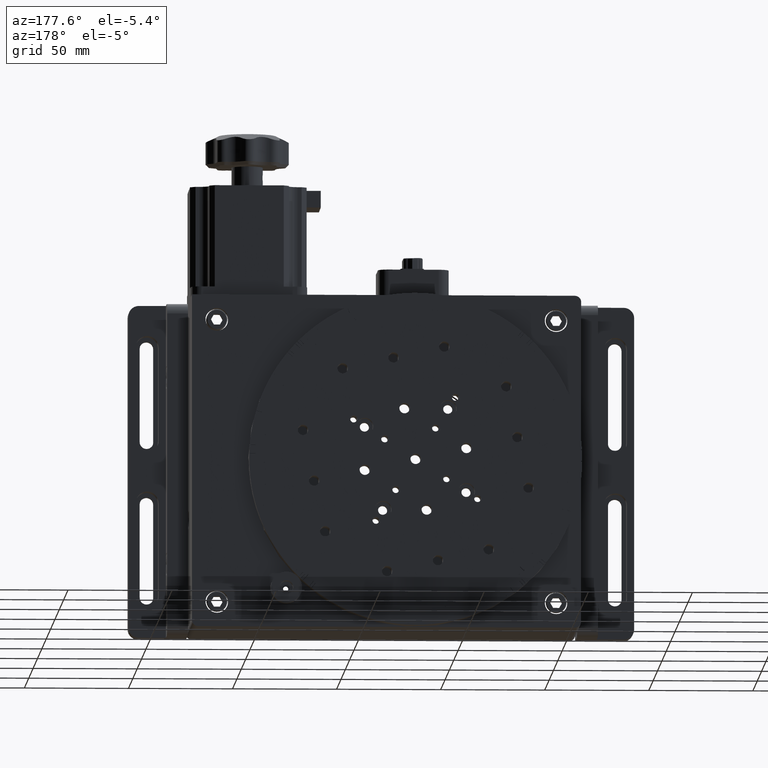
[diagram: clean part render]
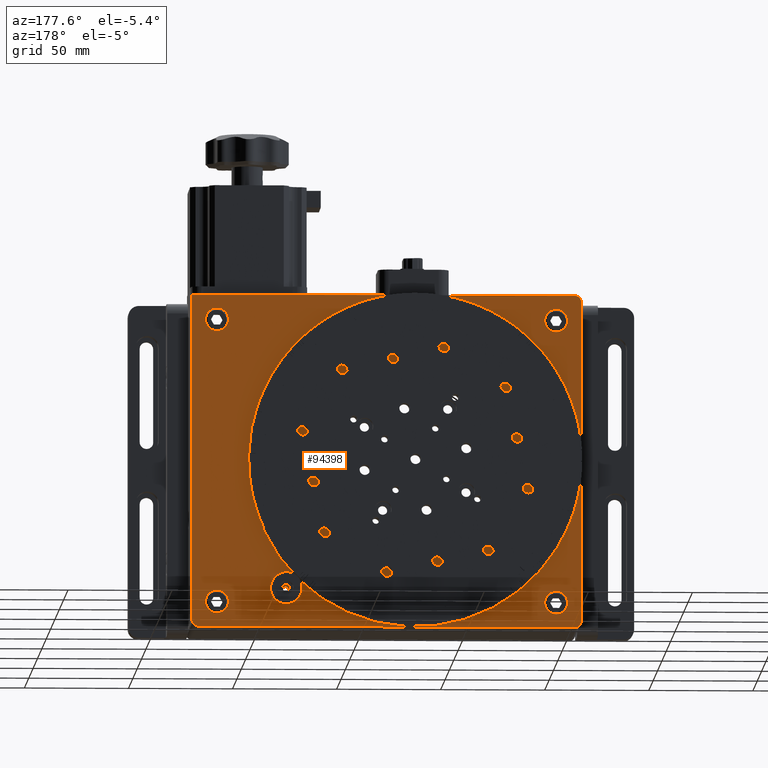
[diagram: same view with one face highlighted and labeled with its STEP entity id]
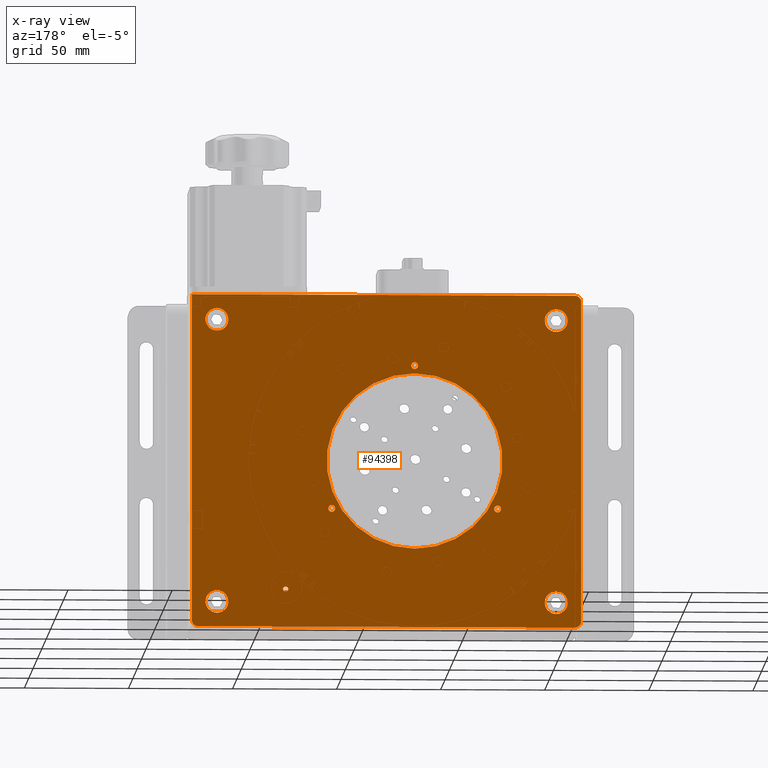
[diagram: x-ray of the same camera — body ghosted, the highlighted face saturated]
A machine part, auxiliary view. The second image highlights one B-rep face of the part: STEP entity #94398.
The next image is the same camera in x-ray: the body ghosted, the highlighted face saturated — about 0% of this face is hidden behind the body in this view.
In plain terms, the highlighted planar face has unit normal (0, -1, 0).
Its self-contained STEP definition (entity closure, byte-faithful):
#66 = EDGE_CURVE ( 'NONE', #68399, #16369, #136, .T. ) ;
#136 = CIRCLE ( 'NONE', #78537, 1.650000000000005700 ) ;
#450 = CARTESIAN_POINT ( 'NONE',  ( 268.4999999999995500, 63.00000000000002800, -62.50000000000341100 ) ) ;
#574 = ORIENTED_EDGE ( 'NONE', *, *, #7890, .F. ) ;
#1520 = AXIS2_PLACEMENT_3D ( 'NONE', #10795, #69220, #19198 ) ;
#1966 = FACE_BOUND ( 'NONE', #107812, .T. ) ;
#2115 = AXIS2_PLACEMENT_3D ( 'NONE', #41987, #100355, #50338 ) ;
#2968 = EDGE_CURVE ( 'NONE', #89300, #90279, #75310, .T. ) ;
#3598 = VERTEX_POINT ( 'NONE', #25440 ) ;
#5211 = CIRCLE ( 'NONE', #81775, 42.25000000000014900 ) ;
#6388 = CARTESIAN_POINT ( 'NONE',  ( 280.4999999999994300, 62.99999999999998600, -77.00000000000365200 ) ) ;
#6601 = VERTEX_POINT ( 'NONE', #92280 ) ;
#6618 = DIRECTION ( 'NONE',  ( -1.009293658750141300E-014, 0.0000000000000000000, -1.000000000000000000 ) ) ;
#7750 = LINE ( 'NONE', #78928, #49562 ) ;
#7890 = EDGE_CURVE ( 'NONE', #40702, #105928, #98883, .T. ) ;
#7894 = EDGE_CURVE ( 'NONE', #57477, #25705, #79278, .T. ) ;
#7895 = CARTESIAN_POINT ( 'NONE',  ( 268.5000000000012500, 63.00000000000000000, 73.49999999999701600 ) ) ;
#7989 = EDGE_LOOP ( 'NONE', ( #574, #14625 ) ) ;
#8255 = ORIENTED_EDGE ( 'NONE', *, *, #39492, .T. ) ;
#8503 = CARTESIAN_POINT ( 'NONE',  ( 105.4999999999989300, 63.00000000000002800, -73.50000000000153500 ) ) ;
#8674 = EDGE_CURVE ( 'NONE', #68917, #3598, #97303, .T. ) ;
#9639 = VECTOR ( 'NONE', #93872, 1000.000000000000000 ) ;
#9932 = AXIS2_PLACEMENT_3D ( 'NONE', #35643, #94016, #43977 ) ;
#10293 = ORIENTED_EDGE ( 'NONE', *, *, #76515, .F. ) ;
#10795 = CARTESIAN_POINT ( 'NONE',  ( 173.4999999999999700, 63.00000000000000000, -2.140474827973259900E-012 ) ) ;
#10817 = EDGE_CURVE ( 'NONE', #90279, #43034, #100419, .T. ) ;
#12133 = CARTESIAN_POINT ( 'NONE',  ( 277.4999999999997700, 62.99999999999998600, -80.00000000000351000 ) ) ;
#12274 = LINE ( 'NONE', #68674, #9639 ) ;
#12808 = CIRCLE ( 'NONE', #40387, 5.500000000000011500 ) ;
#12985 = DIRECTION ( 'NONE',  ( -6.836165114298257600E-018, 1.000000000000000000, -1.156317734156777300E-016 ) ) ;
#13193 = DIRECTION ( 'NONE',  ( -1.682156097916898000E-014, 0.0000000000000000000, -1.000000000000000000 ) ) ;
#14151 = EDGE_CURVE ( 'NONE', #34500, #94053, #62865, .T. ) ;
#14625 = ORIENTED_EDGE ( 'NONE', *, *, #107601, .F. ) ;
#14742 = VERTEX_POINT ( 'NONE', #42213 ) ;
#15170 = EDGE_LOOP ( 'NONE', ( #62316, #64086 ) ) ;
#16369 = VERTEX_POINT ( 'NONE', #20120 ) ;
#16654 = VERTEX_POINT ( 'NONE', #51038 ) ;
#16707 = ORIENTED_EDGE ( 'NONE', *, *, #2968, .T. ) ;
#16947 = VERTEX_POINT ( 'NONE', #7895 ) ;
#18287 = EDGE_CURVE ( 'NONE', #69174, #14742, #41695, .T. ) ;
#18753 = DIRECTION ( 'NONE',  ( -6.836165114298257600E-018, 1.000000000000000000, -1.156317734156777300E-016 ) ) ;
#19198 = DIRECTION ( 'NONE',  ( -1.248179731827094700E-014, 0.0000000000000000000, -1.000000000000000000 ) ) ;
#19491 = CARTESIAN_POINT ( 'NONE',  ( 133.6599999999996800, 62.99999999999998600, -21.35000000000168500 ) ) ;
#20120 = CARTESIAN_POINT ( 'NONE',  ( 213.3399999999998600, 62.99999999999998600, -24.65000000000267700 ) ) ;
#21875 = CARTESIAN_POINT ( 'NONE',  ( 105.4999999999989900, 63.00000000000002800, -68.00000000000153500 ) ) ;
#21998 = EDGE_LOOP ( 'NONE', ( #66490, #46832 ) ) ;
#22007 = AXIS2_PLACEMENT_3D ( 'NONE', #26627, #85062, #35056 ) ;
#22825 = CARTESIAN_POINT ( 'NONE',  ( 173.5000000000004500, 63.00000000000000000, 42.24999999999801000 ) ) ;
#23224 = CARTESIAN_POINT ( 'NONE',  ( 235.4999999999994300, 63.00000000000002800, -60.75000000000309100 ) ) ;
#23621 = AXIS2_PLACEMENT_3D ( 'NONE', #45160, #103564, #53586 ) ;
#23854 = VERTEX_POINT ( 'NONE', #25059 ) ;
#24122 = DIRECTION ( 'NONE',  ( -6.836165114298257600E-018, 1.000000000000000000, -1.156317734156777300E-016 ) ) ;
#24245 = FACE_BOUND ( 'NONE', #104626, .T. ) ;
#25059 = CARTESIAN_POINT ( 'NONE',  ( 173.4999999999994300, 63.00000000000000000, -42.25000000000228800 ) ) ;
#25317 = CIRCLE ( 'NONE', #1520, 42.25000000000014900 ) ;
#25440 = CARTESIAN_POINT ( 'NONE',  ( 173.5000000000004800, 63.00000000000002800, 44.34999999999796900 ) ) ;
#25705 = VERTEX_POINT ( 'NONE', #19491 ) ;
#26411 = CIRCLE ( 'NONE', #9932, 5.500000000000005300 ) ;
#26627 = CARTESIAN_POINT ( 'NONE',  ( 280.4999999999997700, 62.99999999999998600, -80.00000000000365200 ) ) ;
#26810 = FACE_BOUND ( 'NONE', #104837, .T. ) ;
#26902 = EDGE_CURVE ( 'NONE', #16654, #16947, #12808, .T. ) ;
#26979 = ORIENTED_EDGE ( 'NONE', *, *, #46938, .F. ) ;
#27668 = CARTESIAN_POINT ( 'NONE',  ( 93.50000000000066800, 63.00000000000000000, 76.99999999999904800 ) ) ;
#30250 = DIRECTION ( 'NONE',  ( -1.261617073437676700E-014, 0.0000000000000000000, -1.000000000000000000 ) ) ;
#31292 = AXIS2_PLACEMENT_3D ( 'NONE', #66111, #65989, #65756 ) ;
#31593 = EDGE_LOOP ( 'NONE', ( #10293, #82804 ) ) ;
#31851 = CARTESIAN_POINT ( 'NONE',  ( 133.6599999999996300, 62.99999999999998600, -24.65000000000169700 ) ) ;
#32350 = AXIS2_PLACEMENT_3D ( 'NONE', #93048, #43017, #101418 ) ;
#32358 = EDGE_CURVE ( 'NONE', #6601, #49256, #35393, .T. ) ;
#33304 = CARTESIAN_POINT ( 'NONE',  ( 133.6599999999996600, 62.99999999999998600, -23.00000000000169100 ) ) ;
#34500 = VERTEX_POINT ( 'NONE', #84700 ) ;
#34619 = DIRECTION ( 'NONE',  ( -6.836165114298257600E-018, 1.000000000000000000, -1.156317734156777300E-016 ) ) ;
#34868 = ORIENTED_EDGE ( 'NONE', *, *, #65030, .F. ) ;
#35056 = DIRECTION ( 'NONE',  ( 1.215694211964546400E-014, 1.156317734114671400E-016, 1.000000000000000000 ) ) ;
#35393 = CIRCLE ( 'NONE', #32350, 5.500000000000005300 ) ;
#35636 = DIRECTION ( 'NONE',  ( -6.836165114298257600E-018, 1.000000000000000000, -1.156317734156777300E-016 ) ) ;
#35643 = CARTESIAN_POINT ( 'NONE',  ( 105.4999999999989900, 63.00000000000002800, -68.00000000000153500 ) ) ;
#36470 = DIRECTION ( 'NONE',  ( -6.836165114298257600E-018, 1.000000000000000000, -1.156317734156777300E-016 ) ) ;
#36642 = DIRECTION ( 'NONE',  ( -6.836165114298257600E-018, 1.000000000000000000, -1.156317734156777300E-016 ) ) ;
#37179 = AXIS2_PLACEMENT_3D ( 'NONE', #39772, #98149, #48178 ) ;
#37724 = EDGE_LOOP ( 'NONE', ( #34868, #61794 ) ) ;
#37853 = ORIENTED_EDGE ( 'NONE', *, *, #63887, .F. ) ;
#38908 = EDGE_LOOP ( 'NONE', ( #44081, #37853 ) ) ;
#39135 = CARTESIAN_POINT ( 'NONE',  ( 96.50000000000081000, 63.00000000000000000, 79.99999999999900500 ) ) ;
#39268 = AXIS2_PLACEMENT_3D ( 'NONE', #74136, #24122, #82508 ) ;
#39492 = EDGE_CURVE ( 'NONE', #34500, #52492, #101401, .T. ) ;
#39690 = DIRECTION ( 'NONE',  ( -6.836165114298257600E-018, 1.000000000000000000, -1.156317734156777300E-016 ) ) ;
#39772 = CARTESIAN_POINT ( 'NONE',  ( 133.6599999999996600, 62.99999999999998600, -23.00000000000169100 ) ) ;
#40387 = AXIS2_PLACEMENT_3D ( 'NONE', #84590, #34619, #93025 ) ;
#40551 = CARTESIAN_POINT ( 'NONE',  ( 280.4999999999997700, 62.99999999999998600, -80.00000000000365200 ) ) ;
#40702 = VERTEX_POINT ( 'NONE', #66721 ) ;
#41350 = CARTESIAN_POINT ( 'NONE',  ( 280.5000000000009700, 63.00000000000000000, 79.99999999999677400 ) ) ;
#41473 = CIRCLE ( 'NONE', #23621, 3.000000000000016400 ) ;
#41695 = CIRCLE ( 'NONE', #98478, 1.250000000000008000 ) ;
#41987 = CARTESIAN_POINT ( 'NONE',  ( 96.49999999999890600, 62.99999999999998600, -77.00000000000142100 ) ) ;
#42213 = CARTESIAN_POINT ( 'NONE',  ( 235.4999999999993700, 63.00000000000002800, -63.25000000000311200 ) ) ;
#43017 = DIRECTION ( 'NONE',  ( -6.836165114298257600E-018, 1.000000000000000000, -1.156317734156777300E-016 ) ) ;
#43034 = VERTEX_POINT ( 'NONE', #41350 ) ;
#43251 = AXIS2_PLACEMENT_3D ( 'NONE', #85626, #35636, #94009 ) ;
#43770 = FACE_BOUND ( 'NONE', #7989, .T. ) ;
#43977 = DIRECTION ( 'NONE',  ( -1.261617073437676700E-014, 0.0000000000000000000, -1.000000000000000000 ) ) ;
#44081 = ORIENTED_EDGE ( 'NONE', *, *, #7894, .F. ) ;
#45160 = CARTESIAN_POINT ( 'NONE',  ( 277.4999999999994300, 62.99999999999998600, -77.00000000000351000 ) ) ;
#46221 = CIRCLE ( 'NONE', #51420, 1.650000000000005700 ) ;
#46411 = FACE_BOUND ( 'NONE', #38908, .T. ) ;
#46449 = CARTESIAN_POINT ( 'NONE',  ( 268.5000000000011900, 63.00000000000000000, 67.99999999999701600 ) ) ;
#46832 = ORIENTED_EDGE ( 'NONE', *, *, #49392, .F. ) ;
#46938 = EDGE_CURVE ( 'NONE', #16369, #68399, #84195, .T. ) ;
#47150 = DIRECTION ( 'NONE',  ( -6.836165114298257600E-018, 1.000000000000000000, -1.156317734156777300E-016 ) ) ;
#47234 = ORIENTED_EDGE ( 'NONE', *, *, #71712, .F. ) ;
#48093 = CARTESIAN_POINT ( 'NONE',  ( 105.5000000000006700, 63.00000000000000000, 67.99999999999889200 ) ) ;
#48178 = DIRECTION ( 'NONE',  ( -1.682156097916898000E-014, 0.0000000000000000000, -1.000000000000000000 ) ) ;
#49256 = VERTEX_POINT ( 'NONE', #450 ) ;
#49392 = EDGE_CURVE ( 'NONE', #16947, #16654, #91515, .T. ) ;
#49562 = VECTOR ( 'NONE', #87340, 1000.000000000000000 ) ;
#50338 = DIRECTION ( 'NONE',  ( 1.387778780781438100E-014, 0.0000000000000000000, 1.000000000000000000 ) ) ;
#51038 = CARTESIAN_POINT ( 'NONE',  ( 268.5000000000011400, 63.00000000000000000, 62.49999999999700900 ) ) ;
#51420 = AXIS2_PLACEMENT_3D ( 'NONE', #63013, #12985, #71403 ) ;
#51663 = FACE_BOUND ( 'NONE', #31593, .T. ) ;
#51901 = CIRCLE ( 'NONE', #37179, 1.650000000000005700 ) ;
#52420 = VERTEX_POINT ( 'NONE', #8503 ) ;
#52492 = VERTEX_POINT ( 'NONE', #84058 ) ;
#53586 = DIRECTION ( 'NONE',  ( 1.850371707708584000E-014, 0.0000000000000000000, 1.000000000000000000 ) ) ;
#54769 = AXIS2_PLACEMENT_3D ( 'NONE', #106670, #56671, #6618 ) ;
#54878 = DIRECTION ( 'NONE',  ( -1.009293658750140200E-014, 0.0000000000000000000, -1.000000000000000000 ) ) ;
#54903 = VERTEX_POINT ( 'NONE', #91316 ) ;
#56115 = EDGE_CURVE ( 'NONE', #49256, #6601, #89218, .T. ) ;
#56340 = DIRECTION ( 'NONE',  ( -6.836165114298257600E-018, 1.000000000000000000, -1.156317734156777300E-016 ) ) ;
#56671 = DIRECTION ( 'NONE',  ( -6.836165114298257600E-018, 1.000000000000000000, -1.156317734156777300E-016 ) ) ;
#57477 = VERTEX_POINT ( 'NONE', #31851 ) ;
#57536 = ORIENTED_EDGE ( 'NONE', *, *, #14151, .F. ) ;
#60034 = EDGE_CURVE ( 'NONE', #91623, #43034, #12274, .T. ) ;
#61794 = ORIENTED_EDGE ( 'NONE', *, *, #74885, .F. ) ;
#61912 = CIRCLE ( 'NONE', #107229, 5.500000000000005300 ) ;
#62316 = ORIENTED_EDGE ( 'NONE', *, *, #32358, .F. ) ;
#62865 = LINE ( 'NONE', #40551, #102034 ) ;
#63013 = CARTESIAN_POINT ( 'NONE',  ( 173.5000000000005100, 63.00000000000002800, 45.99999999999797500 ) ) ;
#63408 = CARTESIAN_POINT ( 'NONE',  ( 280.5000000000009700, 63.00000000000000000, 79.99999999999677400 ) ) ;
#63887 = EDGE_CURVE ( 'NONE', #25705, #57477, #51901, .T. ) ;
#64086 = ORIENTED_EDGE ( 'NONE', *, *, #56115, .F. ) ;
#65030 = EDGE_CURVE ( 'NONE', #52420, #54903, #61912, .T. ) ;
#65756 = DIRECTION ( 'NONE',  ( -1.682156097916898000E-014, 0.0000000000000000000, -1.000000000000000000 ) ) ;
#65989 = DIRECTION ( 'NONE',  ( -6.836165114298257600E-018, 1.000000000000000000, -1.156317734156777300E-016 ) ) ;
#66021 = FACE_BOUND ( 'NONE', #15170, .T. ) ;
#66111 = CARTESIAN_POINT ( 'NONE',  ( 173.5000000000005100, 63.00000000000002800, 45.99999999999797500 ) ) ;
#66490 = ORIENTED_EDGE ( 'NONE', *, *, #26902, .F. ) ;
#66721 = CARTESIAN_POINT ( 'NONE',  ( 105.5000000000006000, 63.00000000000000000, 62.49999999999888400 ) ) ;
#67910 = ORIENTED_EDGE ( 'NONE', *, *, #92500, .T. ) ;
#68399 = VERTEX_POINT ( 'NONE', #76001 ) ;
#68450 = EDGE_LOOP ( 'NONE', ( #67910, #16707, #84376, #102551, #84575, #57536, #8255 ) ) ;
#68606 = FACE_OUTER_BOUND ( 'NONE', #68450, .T. ) ;
#68674 = CARTESIAN_POINT ( 'NONE',  ( 280.4999999999997700, 62.99999999999998600, -80.00000000000365200 ) ) ;
#68917 = VERTEX_POINT ( 'NONE', #92282 ) ;
#69174 = VERTEX_POINT ( 'NONE', #23224 ) ;
#69220 = DIRECTION ( 'NONE',  ( -6.836165114298257600E-018, 1.000000000000000000, -1.156317734156777300E-016 ) ) ;
#70437 = DIRECTION ( 'NONE',  ( -1.682156097916898000E-014, 0.0000000000000000000, -1.000000000000000000 ) ) ;
#71402 = ORIENTED_EDGE ( 'NONE', *, *, #81947, .F. ) ;
#71403 = DIRECTION ( 'NONE',  ( -1.682156097916898000E-014, 0.0000000000000000000, -1.000000000000000000 ) ) ;
#71712 = EDGE_CURVE ( 'NONE', #23854, #78738, #5211, .T. ) ;
#73333 = AXIS2_PLACEMENT_3D ( 'NONE', #86672, #36642, #95029 ) ;
#74136 = CARTESIAN_POINT ( 'NONE',  ( 235.4999999999994000, 63.00000000000002800, -62.00000000000309800 ) ) ;
#74885 = EDGE_CURVE ( 'NONE', #54903, #52420, #26411, .T. ) ;
#75310 = CIRCLE ( 'NONE', #76633, 3.000000000000016400 ) ;
#75967 = PLANE ( 'NONE',  #22007 ) ;
#76001 = CARTESIAN_POINT ( 'NONE',  ( 213.3399999999999200, 62.99999999999998600, -21.35000000000266600 ) ) ;
#76515 = EDGE_CURVE ( 'NONE', #3598, #68917, #46221, .T. ) ;
#76633 = AXIS2_PLACEMENT_3D ( 'NONE', #87383, #18753, #99351 ) ;
#78537 = AXIS2_PLACEMENT_3D ( 'NONE', #101858, #85079, #70437 ) ;
#78579 = ORIENTED_EDGE ( 'NONE', *, *, #18287, .F. ) ;
#78738 = VERTEX_POINT ( 'NONE', #22825 ) ;
#78928 = CARTESIAN_POINT ( 'NONE',  ( 93.49999999999876400, 62.99999999999998600, -80.00000000000137800 ) ) ;
#79278 = CIRCLE ( 'NONE', #93089, 1.650000000000005700 ) ;
#80276 = DIRECTION ( 'NONE',  ( -6.836165114298257600E-018, 1.000000000000000000, -1.156317734156777300E-016 ) ) ;
#80606 = ORIENTED_EDGE ( 'NONE', *, *, #66, .F. ) ;
#81775 = AXIS2_PLACEMENT_3D ( 'NONE', #86507, #36470, #94850 ) ;
#81893 = AXIS2_PLACEMENT_3D ( 'NONE', #48093, #47150, #84370 ) ;
#81947 = EDGE_CURVE ( 'NONE', #14742, #69174, #99254, .T. ) ;
#82508 = DIRECTION ( 'NONE',  ( -2.220446049250298900E-014, 0.0000000000000000000, -1.000000000000000000 ) ) ;
#82512 = CARTESIAN_POINT ( 'NONE',  ( 105.5000000000007400, 63.00000000000000000, 73.49999999999889200 ) ) ;
#82804 = ORIENTED_EDGE ( 'NONE', *, *, #8674, .F. ) ;
#84058 = CARTESIAN_POINT ( 'NONE',  ( 93.49999999999880600, 62.99999999999998600, -77.00000000000137800 ) ) ;
#84195 = CIRCLE ( 'NONE', #73333, 1.650000000000005700 ) ;
#84370 = DIRECTION ( 'NONE',  ( -1.261617073437675200E-014, 0.0000000000000000000, -1.000000000000000000 ) ) ;
#84376 = ORIENTED_EDGE ( 'NONE', *, *, #10817, .T. ) ;
#84575 = ORIENTED_EDGE ( 'NONE', *, *, #97276, .T. ) ;
#84590 = CARTESIAN_POINT ( 'NONE',  ( 268.5000000000011900, 63.00000000000000000, 67.99999999999701600 ) ) ;
#84700 = CARTESIAN_POINT ( 'NONE',  ( 96.49999999999886300, 62.99999999999998600, -80.00000000000142100 ) ) ;
#85062 = DIRECTION ( 'NONE',  ( 6.836165114298258400E-018, -1.000000000000000000, 1.156317734114670700E-016 ) ) ;
#85079 = DIRECTION ( 'NONE',  ( -6.836165114298257600E-018, 1.000000000000000000, -1.156317734156777300E-016 ) ) ;
#85626 = CARTESIAN_POINT ( 'NONE',  ( 105.5000000000006700, 63.00000000000000000, 67.99999999999889200 ) ) ;
#86507 = CARTESIAN_POINT ( 'NONE',  ( 173.4999999999999700, 63.00000000000000000, -2.140474827973259900E-012 ) ) ;
#86672 = CARTESIAN_POINT ( 'NONE',  ( 213.3399999999998900, 62.99999999999998600, -23.00000000000267200 ) ) ;
#87340 = DIRECTION ( 'NONE',  ( 1.215694211964546400E-014, 1.156317734114671200E-016, 1.000000000000000000 ) ) ;
#87383 = CARTESIAN_POINT ( 'NONE',  ( 96.50000000000076700, 63.00000000000000000, 76.99999999999900500 ) ) ;
#88246 = FACE_BOUND ( 'NONE', #37724, .T. ) ;
#88613 = DIRECTION ( 'NONE',  ( 1.000000000000000000, 6.836165109714001300E-018, -1.215694211964546400E-014 ) ) ;
#89218 = CIRCLE ( 'NONE', #54769, 5.500000000000005300 ) ;
#89300 = VERTEX_POINT ( 'NONE', #27668 ) ;
#89742 = CARTESIAN_POINT ( 'NONE',  ( 235.4999999999994000, 63.00000000000002800, -62.00000000000309800 ) ) ;
#89865 = ORIENTED_EDGE ( 'NONE', *, *, #101107, .F. ) ;
#89968 = CIRCLE ( 'NONE', #43251, 5.500000000000011500 ) ;
#90279 = VERTEX_POINT ( 'NONE', #39135 ) ;
#90861 = FACE_BOUND ( 'NONE', #21998, .T. ) ;
#91316 = CARTESIAN_POINT ( 'NONE',  ( 105.4999999999990600, 63.00000000000002800, -62.50000000000154200 ) ) ;
#91515 = CIRCLE ( 'NONE', #100821, 5.500000000000011500 ) ;
#91623 = VERTEX_POINT ( 'NONE', #6388 ) ;
#92280 = CARTESIAN_POINT ( 'NONE',  ( 268.4999999999994900, 63.00000000000002800, -73.50000000000341100 ) ) ;
#92282 = CARTESIAN_POINT ( 'NONE',  ( 173.5000000000005400, 63.00000000000002800, 47.64999999999798100 ) ) ;
#92500 = EDGE_CURVE ( 'NONE', #52492, #89300, #7750, .T. ) ;
#93025 = DIRECTION ( 'NONE',  ( -1.009293658750140200E-014, 0.0000000000000000000, -1.000000000000000000 ) ) ;
#93048 = CARTESIAN_POINT ( 'NONE',  ( 268.4999999999995500, 63.00000000000002800, -68.00000000000341100 ) ) ;
#93089 = AXIS2_PLACEMENT_3D ( 'NONE', #33304, #56340, #13193 ) ;
#93872 = DIRECTION ( 'NONE',  ( 1.215694211964546400E-014, 1.156317734114671200E-016, 1.000000000000000000 ) ) ;
#94009 = DIRECTION ( 'NONE',  ( -1.261617073437675200E-014, 0.0000000000000000000, -1.000000000000000000 ) ) ;
#94016 = DIRECTION ( 'NONE',  ( -6.836165114298257600E-018, 1.000000000000000000, -1.156317734156777300E-016 ) ) ;
#94053 = VERTEX_POINT ( 'NONE', #12133 ) ;
#94398 = ADVANCED_FACE ( 'NONE', ( #90861, #68606, #26810, #51663, #46411, #24245, #1966, #88246, #66021, #43770 ), #75967, .F. ) ;
#94850 = DIRECTION ( 'NONE',  ( -1.248179731827094700E-014, 0.0000000000000000000, -1.000000000000000000 ) ) ;
#95029 = DIRECTION ( 'NONE',  ( -1.682156097916898000E-014, 0.0000000000000000000, -1.000000000000000000 ) ) ;
#95189 = VECTOR ( 'NONE', #88613, 1000.000000000000000 ) ;
#97276 = EDGE_CURVE ( 'NONE', #91623, #94053, #41473, .T. ) ;
#97303 = CIRCLE ( 'NONE', #31292, 1.650000000000005700 ) ;
#98074 = DIRECTION ( 'NONE',  ( -2.220446049250298900E-014, 0.0000000000000000000, -1.000000000000000000 ) ) ;
#98149 = DIRECTION ( 'NONE',  ( -6.836165114298257600E-018, 1.000000000000000000, -1.156317734156777300E-016 ) ) ;
#98478 = AXIS2_PLACEMENT_3D ( 'NONE', #89742, #39690, #98074 ) ;
#98883 = CIRCLE ( 'NONE', #81893, 5.500000000000011500 ) ;
#99254 = CIRCLE ( 'NONE', #39268, 1.250000000000008000 ) ;
#99351 = DIRECTION ( 'NONE',  ( 4.625929269271460100E-015, 0.0000000000000000000, 1.000000000000000000 ) ) ;
#100355 = DIRECTION ( 'NONE',  ( -6.836165114298257600E-018, 1.000000000000000000, -1.156317734156777300E-016 ) ) ;
#100419 = LINE ( 'NONE', #63408, #95189 ) ;
#100821 = AXIS2_PLACEMENT_3D ( 'NONE', #46449, #104846, #54878 ) ;
#101107 = EDGE_CURVE ( 'NONE', #78738, #23854, #25317, .T. ) ;
#101401 = CIRCLE ( 'NONE', #2115, 3.000000000000016400 ) ;
#101418 = DIRECTION ( 'NONE',  ( -1.009293658750141300E-014, 0.0000000000000000000, -1.000000000000000000 ) ) ;
#101858 = CARTESIAN_POINT ( 'NONE',  ( 213.3399999999998900, 62.99999999999998600, -23.00000000000267200 ) ) ;
#102034 = VECTOR ( 'NONE', #106977, 1000.000000000000000 ) ;
#102551 = ORIENTED_EDGE ( 'NONE', *, *, #60034, .F. ) ;
#103564 = DIRECTION ( 'NONE',  ( -6.836165114298257600E-018, 1.000000000000000000, -1.156317734156777300E-016 ) ) ;
#104626 = EDGE_LOOP ( 'NONE', ( #26979, #80606 ) ) ;
#104837 = EDGE_LOOP ( 'NONE', ( #47234, #89865 ) ) ;
#104846 = DIRECTION ( 'NONE',  ( -6.836165114298257600E-018, 1.000000000000000000, -1.156317734156777300E-016 ) ) ;
#105928 = VERTEX_POINT ( 'NONE', #82512 ) ;
#106670 = CARTESIAN_POINT ( 'NONE',  ( 268.4999999999995500, 63.00000000000002800, -68.00000000000341100 ) ) ;
#106977 = DIRECTION ( 'NONE',  ( 1.000000000000000000, 6.836165109714001300E-018, -1.215694211964546400E-014 ) ) ;
#107229 = AXIS2_PLACEMENT_3D ( 'NONE', #21875, #80276, #30250 ) ;
#107601 = EDGE_CURVE ( 'NONE', #105928, #40702, #89968, .T. ) ;
#107812 = EDGE_LOOP ( 'NONE', ( #71402, #78579 ) ) ;